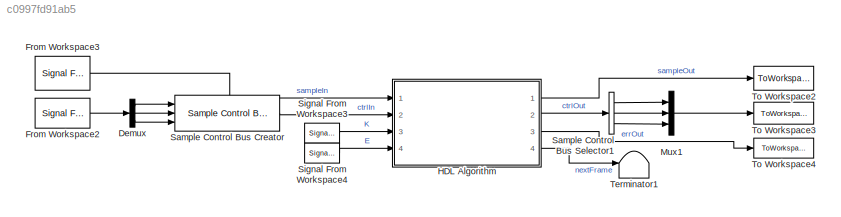
MODEL slx_c0997fd91ab5
KIND model
CONFIG AbsTol = auto
CONFIG EnableMultiTasking = off
CONFIG FixedStep = auto
CONFIG MaxStep = auto
CONFIG MinStep = auto
CONFIG RelTol = 1e-3
CONFIG SampleTimeConstraint = Unconstrained
CONFIG Solver = VariableStepAuto
CONFIG SolverName = VariableStepAuto
CONFIG StartTime = 0.0
CONFIG StopTime = 10.0
BLOCK [Demux] Demux
  Outputs = 3
  Ports = [1, 3]
BLOCK [Reference] From Workspace2  REF=dspsrcs4/Signal From
Workspace
  Ports = [0, 1]
  SourceBlock = dspsrcs4/Signal From\nWorkspace
  SourceProductBaseCode = DS
  SourceType = Signal From Workspace
BLOCK [Reference] From Workspace3  REF=dspsrcs4/Signal From
Workspace
  Ports = [0, 1]
  SourceBlock = dspsrcs4/Signal From\nWorkspace
  SourceProductBaseCode = DS
  SourceType = Signal From Workspace
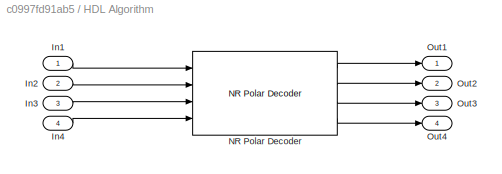
BLOCK [SubSystem] HDL Algorithm
  Ports = [4, 4]
  RequestExecContextInheritance = off
BLOCK [Inport] HDL Algorithm/In1
BLOCK [Inport] HDL Algorithm/In2
  Port = 2
BLOCK [Inport] HDL Algorithm/In3
  Port = 3
BLOCK [Inport] HDL Algorithm/In4
  Port = 4
BLOCK [Reference] HDL Algorithm/NR Polar Decoder  REF=whdledac/NR Polar Decoder
  Ports = [4, 4]
  SourceBlock = whdledac/NR Polar Decoder
  SourceProductBaseCode = LH
  SourceType = NR Polar Decoder
BLOCK [Outport] HDL Algorithm/Out1
BLOCK [Outport] HDL Algorithm/Out2
  Port = 2
BLOCK [Outport] HDL Algorithm/Out3
  Port = 3
BLOCK [Outport] HDL Algorithm/Out4
  Port = 4
BLOCK [Mux] Mux1
  DisplayOption = bar
  Inputs = 3
  Ports = [3, 1]
BLOCK [Reference] Sample Control Bus Creator  REF=whdlutilities/Sample Control
Bus Creator
  Ports = [3, 1]
  SourceBlock = whdlutilities/Sample Control\nBus Creator
  SourceProductBaseCode = LH
  SourceType = Sample Control Bus Creator
BLOCK [BusSelector] Sample Control Bus Selector1
  OutputSignals = start,end,valid
  Ports = [1, 3]
BLOCK [Reference] Signal From Workspace3  REF=dspsrcs4/Signal From
Workspace
  Ports = [0, 1]
  SourceBlock = dspsrcs4/Signal From\nWorkspace
  SourceProductBaseCode = DS
  SourceType = Signal From Workspace
BLOCK [Reference] Signal From Workspace4  REF=dspsrcs4/Signal From
Workspace
  Ports = [0, 1]
  SourceBlock = dspsrcs4/Signal From\nWorkspace
  SourceProductBaseCode = DS
  SourceType = Signal From Workspace
BLOCK [Terminator] Terminator1
BLOCK [ToWorkspace] To Workspace2
  MaxDataPoints = simTime
  Ports = [1]
  SampleTime = -1
  Save2DSignal = 2-D array (concatenate along first dimension)
  VariableName = sampleOut
BLOCK [ToWorkspace] To Workspace3
  MaxDataPoints = simTime
  Ports = [1]
  SampleTime = -1
  Save2DSignal = 2-D array (concatenate along first dimension)
  VariableName = ctrlOut
BLOCK [ToWorkspace] To Workspace4
  MaxDataPoints = simTime
  Ports = [1]
  SampleTime = -1
  Save2DSignal = 2-D array (concatenate along first dimension)
  VariableName = errOut
LINE Demux:1 -> Sample Control Bus Creator:1
LINE Demux:2 -> Sample Control Bus Creator:2
LINE Demux:3 -> Sample Control Bus Creator:3
LINE From Workspace2:1 -> Demux:1
LINE From Workspace3:1 -> HDL Algorithm:1
LINE HDL Algorithm/In1:1 -> HDL Algorithm/NR Polar Decoder:1
LINE HDL Algorithm/In2:1 -> HDL Algorithm/NR Polar Decoder:2
LINE HDL Algorithm/In3:1 -> HDL Algorithm/NR Polar Decoder:3
LINE HDL Algorithm/In4:1 -> HDL Algorithm/NR Polar Decoder:4
LINE HDL Algorithm/NR Polar Decoder:1 -> HDL Algorithm/Out1:1
LINE HDL Algorithm/NR Polar Decoder:2 -> HDL Algorithm/Out2:1
LINE HDL Algorithm/NR Polar Decoder:3 -> HDL Algorithm/Out3:1
LINE HDL Algorithm/NR Polar Decoder:4 -> HDL Algorithm/Out4:1
LINE HDL Algorithm:1 -> To Workspace2:1
LINE HDL Algorithm:2 -> Sample Control Bus Selector1:1
LINE HDL Algorithm:3 -> To Workspace4:1
LINE HDL Algorithm:4 -> Terminator1:1
LINE Mux1:1 -> To Workspace3:1
LINE Sample Control Bus Creator:1 -> HDL Algorithm:2
LINE Sample Control Bus Selector1:1 -> Mux1:1
LINE Sample Control Bus Selector1:2 -> Mux1:2
LINE Sample Control Bus Selector1:3 -> Mux1:3
LINE Signal From Workspace3:1 -> HDL Algorithm:3
LINE Signal From Workspace4:1 -> HDL Algorithm:4
